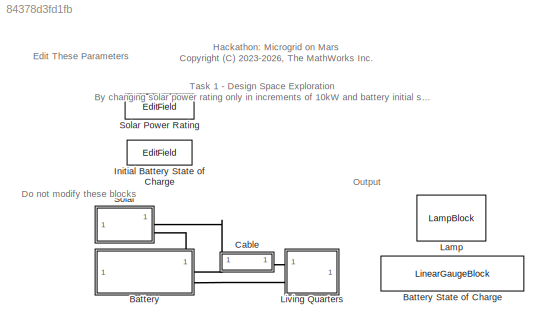
MODEL slx_84378d3fd1fb
KIND model
CONFIG SolverName = VariableStepAuto
CONFIG StopTime = (3600+37*60/24)*24*7
BLOCK [EditField]  Solar Power Rating
  Alignment = Center
  Description = Solar kW
  LabelPosition = Hide
  NameLocation = top
  ShowInitialText = on
  Tag = Solar kW
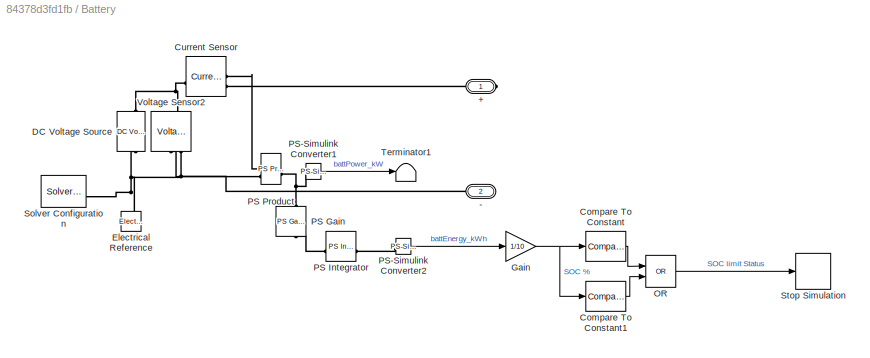
BLOCK [SubSystem] Battery
BLOCK [LinearGaugeBlock] Battery State of Charge
  LabelPosition = Hide
  NameLocation = top
BLOCK [PMIOPort] Battery/+
  Side = Right
BLOCK [PMIOPort] Battery/-
  Port = 2
  Side = Right
BLOCK [Reference] Battery/Compare To Constant  REF=simulink/Logic and Bit
Operations/Compare
To Constant
  SourceBlock = simulink/Logic and Bit\nOperations/Compare\nTo Constant
  SourceType = Compare To Constant
BLOCK [Reference] Battery/Compare To Constant1  REF=simulink/Logic and Bit
Operations/Compare
To Constant
  SourceBlock = simulink/Logic and Bit\nOperations/Compare\nTo Constant
  SourceType = Compare To Constant
BLOCK [Reference] Battery/Current Sensor  REF=fl_lib/Electrical/Electrical Sensors/Current Sensor
  SourceBlock = fl_lib/Electrical/Electrical Sensors/Current Sensor
  SourceType = Current Sensor
BLOCK [Reference] Battery/DC Voltage Source  REF=fl_lib/Electrical/Electrical Sources/DC Voltage Source
  NameLocation = right
  SourceBlock = fl_lib/Electrical/Electrical Sources/DC Voltage Source
  SourceType = DC Voltage Source
BLOCK [Reference] Battery/Electrical Reference  REF=fl_lib/Electrical/Electrical Elements/Electrical Reference
  NameLocation = right
  SourceBlock = fl_lib/Electrical/Electrical Elements/Electrical Reference
  SourceType = Electrical Reference
BLOCK [Gain] Battery/Gain
  Gain = 1/10
BLOCK [Logic] Battery/OR
  AllPortsSameDT = off
  IconShape = distinctive
  Operator = OR
  OutDataTypeStr = boolean
BLOCK [Reference] Battery/PS Gain  REF=fl_lib/Physical Signals/Functions/PS Gain
  NameLocation = left
  SourceBlock = fl_lib/Physical Signals/Functions/PS Gain
  SourceType = PS Gain
BLOCK [Reference] Battery/PS Integrator  REF=fl_lib/Physical Signals/Linear Operators/PS Integrator
  SourceBlock = fl_lib/Physical Signals/Linear Operators/PS Integrator
  SourceType = PS Integrator
BLOCK [Reference] Battery/PS Product  REF=fl_lib/Physical Signals/Functions/PS Product
  SourceBlock = fl_lib/Physical Signals/Functions/PS Product
  SourceType = PS Product
BLOCK [Reference] Battery/PS-Simulink Converter1  REF=nesl_utility/PS-Simulink
Converter
  SourceBlock = nesl_utility/PS-Simulink\nConverter
  SourceType = PS-Simulink\nConverter
BLOCK [Reference] Battery/PS-Simulink Converter2  REF=nesl_utility/PS-Simulink
Converter
  SourceBlock = nesl_utility/PS-Simulink\nConverter
  SourceType = PS-Simulink\nConverter
BLOCK [Reference] Battery/Solver Configuration  REF=nesl_utility/Solver
Configuration
  SourceBlock = nesl_utility/Solver\nConfiguration
  SourceType = Solver\nConfiguration
BLOCK [Stop] Battery/Stop Simulation
BLOCK [Terminator] Battery/Terminator1
BLOCK [Reference] Battery/Voltage Sensor2  REF=fl_lib/Electrical/Electrical Sensors/Voltage Sensor
  NameLocation = right
  SourceBlock = fl_lib/Electrical/Electrical Sensors/Voltage Sensor
  SourceType = Voltage Sensor
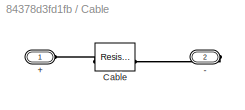
BLOCK [SubSystem] Cable
BLOCK [PMIOPort] Cable/+
  Side = Left
BLOCK [PMIOPort] Cable/-
  Port = 2
  Side = Right
BLOCK [Reference] Cable/Cable  REF=fl_lib/Electrical/Electrical Elements/Resistor
  NameLocation = top
  SourceBlock = fl_lib/Electrical/Electrical Elements/Resistor
  SourceType = Resistor
BLOCK [EditField] Initial Battery State of Charge
  Alignment = Center
  LabelPosition = Hide
  NameLocation = top
  ShowInitialText = on
BLOCK [LampBlock] Lamp
  DefaultColor = [255.0, 0.0, 0.0]
  NameLocation = top
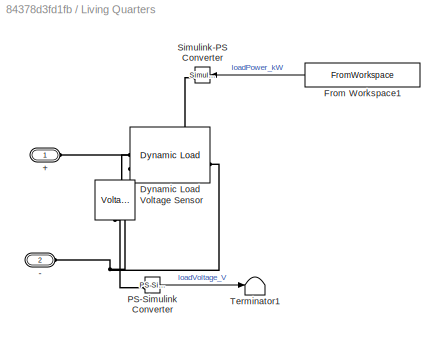
BLOCK [SubSystem] Living Quarters
BLOCK [PMIOPort] Living Quarters/+
  Side = Left
BLOCK [PMIOPort] Living Quarters/-
  Port = 2
  Side = Left
BLOCK [Reference] Living Quarters/Dynamic Load  REF=ee_lib/Passive/Dynamic Load
  SourceBlock = ee_lib/Passive/Dynamic Load
  SourceType = Dynamic Load
BLOCK [FromWorkspace] Living Quarters/From Workspace1
  NameLocation = top
  VariableName = [t loadPower]
BLOCK [Reference] Living Quarters/PS-Simulink Converter  REF=nesl_utility/PS-Simulink
Converter
  SourceBlock = nesl_utility/PS-Simulink\nConverter
  SourceType = PS-Simulink\nConverter
BLOCK [Reference] Living Quarters/Simulink-PS Converter  REF=nesl_utility/Simulink-PS
Converter
  NameLocation = top
  SourceBlock = nesl_utility/Simulink-PS\nConverter
  SourceType = Simulink-PS\nConverter
BLOCK [Terminator] Living Quarters/Terminator1
BLOCK [Reference] Living Quarters/Voltage Sensor  REF=fl_lib/Electrical/Electrical Sensors/Voltage Sensor
  NameLocation = right
  SourceBlock = fl_lib/Electrical/Electrical Sensors/Voltage Sensor
  SourceType = Voltage Sensor
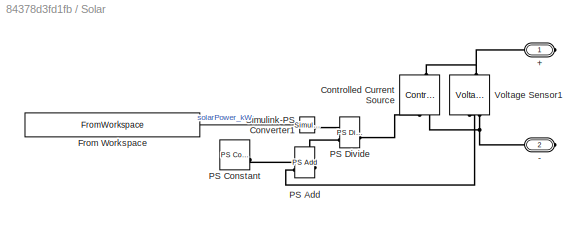
BLOCK [SubSystem] Solar
BLOCK [PMIOPort] Solar/+
  NameLocation = top
  Side = Right
BLOCK [PMIOPort] Solar/-
  NameLocation = top
  Port = 2
  Side = Right
BLOCK [Reference] Solar/Controlled Current Source  REF=fl_lib/Electrical/Electrical Sources/Controlled Current
Source
  NameLocation = right
  SourceBlock = fl_lib/Electrical/Electrical Sources/Controlled Current\nSource
  SourceType = Controlled Current\nSource
BLOCK [FromWorkspace] Solar/From Workspace
  VariableName = [t irradiance*power_rating*2/1000]
BLOCK [Reference] Solar/PS Add  REF=fl_lib/Physical Signals/Functions/PS Add
  SourceBlock = fl_lib/Physical Signals/Functions/PS Add
  SourceType = PS Add
BLOCK [Reference] Solar/PS Constant  REF=fl_lib/Physical Signals/Sources/PS Constant
  SourceBlock = fl_lib/Physical Signals/Sources/PS Constant
  SourceType = PS Constant
BLOCK [Reference] Solar/PS Divide  REF=fl_lib/Physical Signals/Functions/PS Divide
  SourceBlock = fl_lib/Physical Signals/Functions/PS Divide
  SourceType = PS Divide
BLOCK [Reference] Solar/Simulink-PS Converter1  REF=nesl_utility/Simulink-PS
Converter
  SourceBlock = nesl_utility/Simulink-PS\nConverter
  SourceType = Simulink-PS\nConverter
BLOCK [Reference] Solar/Voltage Sensor1  REF=fl_lib/Electrical/Electrical Sensors/Voltage Sensor
  NameLocation = right
  SourceBlock = fl_lib/Electrical/Electrical Sensors/Voltage Sensor
  SourceType = Voltage Sensor
ANNOTATION (root): Hackathon: Microgrid on Mars <copyright redacted>
ANNOTATION (root): Task 1 - Design Space Exploration By changing solar power rating only in increments of 10kW and battery initial state-of-charge (SOC) only in increments of 10%, determine the minimum solar power rating to provide uninterrupted power to the living quarters over a 7 sol period.
ANNOTATION (root): Do not modify these blocks
ANNOTATION (root): Edit These Parameters
ANNOTATION (root): Output
LINE Battery/Compare To Constant1:1 -> Battery/OR:2
LINE Battery/Compare To Constant:1 -> Battery/OR:1
NET Battery/Gain:1 -> Battery/Compare To Constant1:1, Battery/Compare To Constant:1
LINE Battery/OR:1 -> Battery/Stop Simulation:1
LINE Battery/PS-Simulink Converter1:1 -> Battery/Terminator1:1
LINE Battery/PS-Simulink Converter2:1 -> Battery/Gain:1
LINE Living Quarters/From Workspace1:1 -> Living Quarters/Simulink-PS Converter:1
LINE Living Quarters/PS-Simulink Converter:1 -> Living Quarters/Terminator1:1
LINE Solar/From Workspace:1 -> Solar/Simulink-PS Converter1:1
PLINE Battery/+:RConn1 -- Battery/Current Sensor:RConn2
PNET net1: Battery/-:RConn1 -- Battery/DC Voltage Source:RConn1 -- Battery/Electrical Reference:LConn1 -- Battery/Solver Configuration:RConn1 -- Battery/Voltage Sensor2:RConn2
PNET net2: Battery/Current Sensor:LConn1 -- Battery/DC Voltage Source:LConn1 -- Battery/Voltage Sensor2:LConn1
PLINE Battery/Current Sensor:RConn1 -- Battery/PS Product:LConn1
PNET net3: Battery/PS Gain:LConn1 -- Battery/PS Product:RConn1 -- Battery/PS-Simulink Converter1:LConn1
PLINE Battery/PS Gain:RConn1 -- Battery/PS Integrator:LConn1
PLINE Battery/PS Integrator:RConn1 -- Battery/PS-Simulink Converter2:LConn1
PLINE Battery/PS Product:LConn2 -- Battery/Voltage Sensor2:RConn1
PNET net4: Battery:RConn1 -- Cable:LConn1 -- Solar:RConn1
PNET net5: Battery:RConn2 -- Living Quarters:LConn2 -- Solar:RConn2
PLINE Cable/+:RConn1 -- Cable/Cable:LConn1
PLINE Cable/-:RConn1 -- Cable/Cable:RConn1
PLINE Cable:RConn1 -- Living Quarters:LConn1
PNET net6: Living Quarters/+:RConn1 -- Living Quarters/Dynamic Load:LConn1 -- Living Quarters/Voltage Sensor:LConn1
PNET net7: Living Quarters/-:RConn1 -- Living Quarters/Dynamic Load:RConn1 -- Living Quarters/Voltage Sensor:RConn2
PLINE Living Quarters/Dynamic Load:LConn2 -- Living Quarters/Simulink-PS Converter:RConn1
PLINE Living Quarters/PS-Simulink Converter:LConn1 -- Living Quarters/Voltage Sensor:RConn1
PNET net8: Solar/+:RConn1 -- Solar/Controlled Current Source:LConn1 -- Solar/Voltage Sensor1:LConn1
PNET net9: Solar/-:RConn1 -- Solar/Controlled Current Source:RConn2 -- Solar/Voltage Sensor1:RConn2
PLINE Solar/Controlled Current Source:RConn1 -- Solar/PS Divide:RConn1
PLINE Solar/PS Add:LConn1 -- Solar/PS Constant:RConn1
PLINE Solar/PS Add:LConn2 -- Solar/Voltage Sensor1:RConn1
PLINE Solar/PS Add:RConn1 -- Solar/PS Divide:LConn2
PLINE Solar/PS Divide:LConn1 -- Solar/Simulink-PS Converter1:RConn1
note: NET lines group one-source signal fan-out (src -> all destinations, sorted); 1:1 wires keep LINE; PNET lines group multi-terminal physical nets as a canonical sorted terminal list (undirected conserving connections); 2-terminal nets keep the pairwise PLINE form
